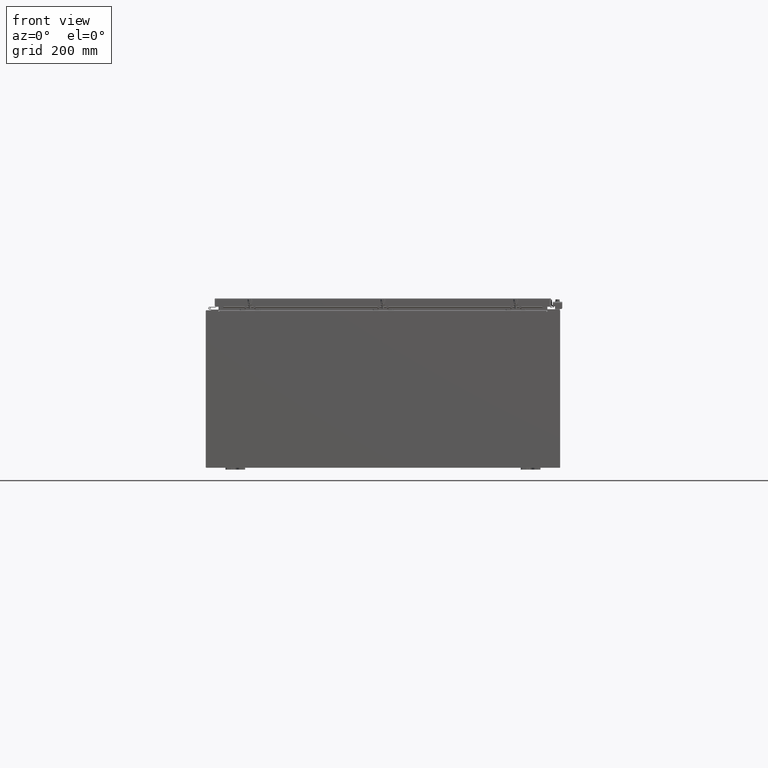
[diagram: clean part render]
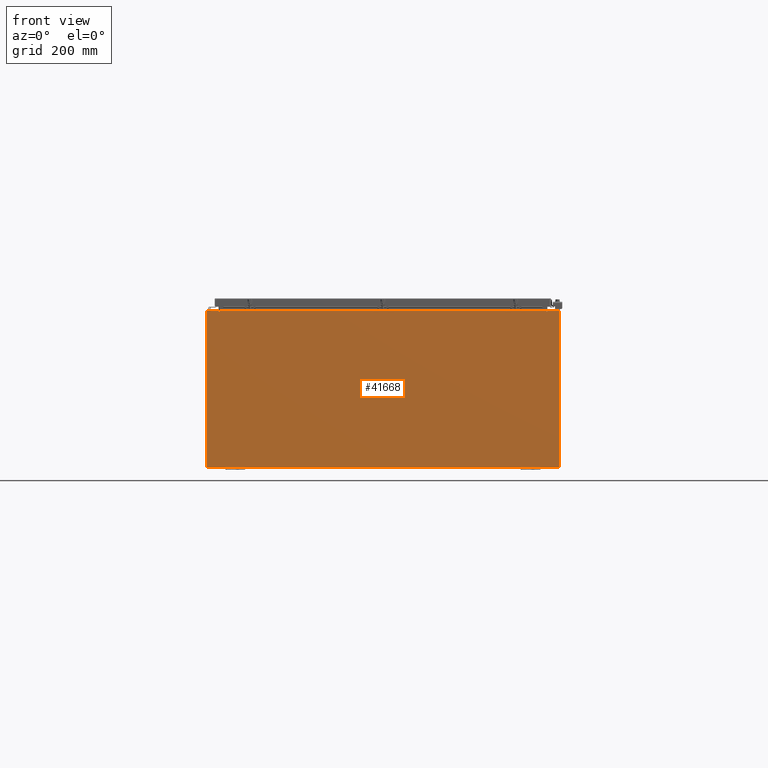
[diagram: same view with one face highlighted and labeled with its STEP entity id]
A machine part, front view. The second image highlights one B-rep face of the part: STEP entity #41668.
In plain terms, the highlighted planar face has unit normal (-0, 1, -0).
Its self-contained STEP definition (entity closure, byte-faithful):
#24 = CARTESIAN_POINT ( 'NONE',  ( 17.92530000000000000, 0.0000000000000000000, -7.925299999999997300 ) ) ;
#236 = LINE ( 'NONE', #422, #50581 ) ;
#422 = CARTESIAN_POINT ( 'NONE',  ( -16.63720000000000400, -2.356218894535426900E-015, 7.912300000000008100 ) ) ;
#897 = CARTESIAN_POINT ( 'NONE',  ( -17.92530000000000000, 0.0000000000000000000, 7.925300000000001800 ) ) ;
#941 = CARTESIAN_POINT ( 'NONE',  ( -17.92530000000000000, 0.0000000000000000000, 7.925300000000001800 ) ) ;
#1266 = EDGE_CURVE ( 'NONE', #1885, #59657, #236, .T. ) ;
#1885 = VERTEX_POINT ( 'NONE', #55952 ) ;
#1947 = DIRECTION ( 'NONE',  ( 0.0000000000000000000, -1.000000000000000000, 0.0000000000000000000 ) ) ;
#2123 = CARTESIAN_POINT ( 'NONE',  ( -16.65587500000000200, 0.0000000000000000000, 7.874950000000001900 ) ) ;
#3975 = VECTOR ( 'NONE', #57538, 39.37007874015748100 ) ;
#5174 = EDGE_CURVE ( 'NONE', #46140, #58883, #61004, .T. ) ;
#6279 = EDGE_CURVE ( 'NONE', #51325, #39852, #16871, .T. ) ;
#6495 = CARTESIAN_POINT ( 'NONE',  ( -17.92530000000000000, 0.0000000000000000000, 7.925300000000001800 ) ) ;
#7012 = CARTESIAN_POINT ( 'NONE',  ( 16.63720000000000400, 0.0000000000000000000, 7.912300000000001900 ) ) ;
#7043 = DIRECTION ( 'NONE',  ( 0.0000000000000000000, 0.0000000000000000000, -1.000000000000000000 ) ) ;
#7772 = EDGE_CURVE ( 'NONE', #36290, #59657, #12143, .T. ) ;
#8096 = DIRECTION ( 'NONE',  ( -0.0000000000000000000, 1.000000000000000000, -0.0000000000000000000 ) ) ;
#9475 = VECTOR ( 'NONE', #60514, 39.37007874015748100 ) ;
#9660 = CARTESIAN_POINT ( 'NONE',  ( 16.63720000000000400, 0.0000000000000000000, 7.874950000000001900 ) ) ;
#9875 = EDGE_CURVE ( 'NONE', #26506, #54325, #22370, .T. ) ;
#9936 = VECTOR ( 'NONE', #60362, 39.37007874015748100 ) ;
#10021 = CIRCLE ( 'NONE', #39491, 0.01867499999999949400 ) ;
#10113 = ORIENTED_EDGE ( 'NONE', *, *, #6279, .T. ) ;
#10840 = VECTOR ( 'NONE', #42315, 39.37007874015748100 ) ;
#11359 = AXIS2_PLACEMENT_3D ( 'NONE', #37160, #8096, #42063 ) ;
#12143 = LINE ( 'NONE', #25936, #47888 ) ;
#12956 = VECTOR ( 'NONE', #49744, 39.37007874015748100 ) ;
#13759 = ORIENTED_EDGE ( 'NONE', *, *, #62828, .T. ) ;
#14021 = VECTOR ( 'NONE', #35580, 39.37007874015748100 ) ;
#14038 = AXIS2_PLACEMENT_3D ( 'NONE', #31060, #1947, #35951 ) ;
#14740 = EDGE_CURVE ( 'NONE', #58883, #36290, #26262, .T. ) ;
#15547 = LINE ( 'NONE', #6495, #14021 ) ;
#15658 = ORIENTED_EDGE ( 'NONE', *, *, #48012, .F. ) ;
#16871 = LINE ( 'NONE', #22529, #54156 ) ;
#17142 = EDGE_CURVE ( 'NONE', #38350, #26506, #10021, .T. ) ;
#18363 = ORIENTED_EDGE ( 'NONE', *, *, #9875, .F. ) ;
#21587 = CARTESIAN_POINT ( 'NONE',  ( -16.67455000000000000, -0.0000000000000000000, 0.0000000000000000000 ) ) ;
#21797 = ORIENTED_EDGE ( 'NONE', *, *, #49717, .T. ) ;
#22370 = LINE ( 'NONE', #21587, #9475 ) ;
#22529 = CARTESIAN_POINT ( 'NONE',  ( -17.92530000000000000, 0.0000000000000000000, 7.925300000000001800 ) ) ;
#22827 = LINE ( 'NONE', #31211, #9936 ) ;
#24066 = ORIENTED_EDGE ( 'NONE', *, *, #59040, .T. ) ;
#24222 = ORIENTED_EDGE ( 'NONE', *, *, #14740, .F. ) ;
#24347 = FACE_OUTER_BOUND ( 'NONE', #34405, .T. ) ;
#25045 = CARTESIAN_POINT ( 'NONE',  ( 16.67455000000000000, 0.0000000000000000000, 7.874950000000001900 ) ) ;
#25727 = PLANE ( 'NONE',  #14038 ) ;
#25936 = CARTESIAN_POINT ( 'NONE',  ( 16.63720000000000400, 0.0000000000000000000, 0.0000000000000000000 ) ) ;
#26262 = CIRCLE ( 'NONE', #11359, 0.01867499999999949400 ) ;
#26506 = VERTEX_POINT ( 'NONE', #41758 ) ;
#27807 = CARTESIAN_POINT ( 'NONE',  ( 16.67454999999931800, -0.0000000000000000000, -1.447541957108381700E-012 ) ) ;
#28695 = ORIENTED_EDGE ( 'NONE', *, *, #17142, .F. ) ;
#30630 = DIRECTION ( 'NONE',  ( 0.0000000000000000000, 0.0000000000000000000, 1.000000000000000000 ) ) ;
#31060 = CARTESIAN_POINT ( 'NONE',  ( 0.0000000000000000000, 0.0000000000000000000, 0.0000000000000000000 ) ) ;
#31211 = CARTESIAN_POINT ( 'NONE',  ( 17.92530000000000000, 0.0000000000000000000, 7.925300000000000000 ) ) ;
#34254 = CARTESIAN_POINT ( 'NONE',  ( -17.92530000000000000, 0.0000000000000000000, -7.925299999999997300 ) ) ;
#34401 = VERTEX_POINT ( 'NONE', #24 ) ;
#34405 = EDGE_LOOP ( 'NONE', ( #18363, #28695, #15658, #59370, #54699, #24222, #38332, #13759, #24066, #43227, #10113, #21797 ) ) ;
#35311 = CARTESIAN_POINT ( 'NONE',  ( -17.92530000000000000, 0.0000000000000000000, -7.925299999999997300 ) ) ;
#35580 = DIRECTION ( 'NONE',  ( 1.000000000000000000, 0.0000000000000000000, -6.096072018129154100E-017 ) ) ;
#35951 = DIRECTION ( 'NONE',  ( 0.0000000000000000000, -0.0000000000000000000, -1.000000000000000000 ) ) ;
#36144 = DIRECTION ( 'NONE',  ( -0.0000000000000000000, 1.000000000000000000, -0.0000000000000000000 ) ) ;
#36290 = VERTEX_POINT ( 'NONE', #9660 ) ;
#37160 = CARTESIAN_POINT ( 'NONE',  ( 16.65587500000000200, 0.0000000000000000000, 7.874950000000001900 ) ) ;
#38332 = ORIENTED_EDGE ( 'NONE', *, *, #5174, .F. ) ;
#38350 = VERTEX_POINT ( 'NONE', #61284 ) ;
#39491 = AXIS2_PLACEMENT_3D ( 'NONE', #2123, #36144, #7043 ) ;
#39852 = VERTEX_POINT ( 'NONE', #897 ) ;
#40213 = DIRECTION ( 'NONE',  ( -1.000000000000000000, -0.0000000000000000000, -0.0000000000000000000 ) ) ;
#41150 = CARTESIAN_POINT ( 'NONE',  ( 17.92530000000000000, 0.0000000000000000000, 7.925300000000000000 ) ) ;
#41668 = ADVANCED_FACE ( 'NONE', ( #24347 ), #25727, .F. ) ;
#41758 = CARTESIAN_POINT ( 'NONE',  ( -16.67455000000000000, 0.0000000000000000000, 7.874950000000001900 ) ) ;
#42063 = DIRECTION ( 'NONE',  ( 0.0000000000000000000, 0.0000000000000000000, -1.000000000000000000 ) ) ;
#42315 = DIRECTION ( 'NONE',  ( -8.681145560800387200E-014, 0.0000000000000000000, -1.000000000000000000 ) ) ;
#42521 = CARTESIAN_POINT ( 'NONE',  ( -16.67455000000000000, 0.0000000000000000000, 7.925300000000001800 ) ) ;
#42804 = LINE ( 'NONE', #52699, #3975 ) ;
#43227 = ORIENTED_EDGE ( 'NONE', *, *, #55750, .T. ) ;
#46140 = VERTEX_POINT ( 'NONE', #56280 ) ;
#46792 = LINE ( 'NONE', #35311, #56648 ) ;
#46836 = DIRECTION ( 'NONE',  ( -0.0000000000000000000, -0.0000000000000000000, 1.000000000000000000 ) ) ;
#47888 = VECTOR ( 'NONE', #30630, 39.37007874015748100 ) ;
#48012 = EDGE_CURVE ( 'NONE', #1885, #38350, #42804, .T. ) ;
#49209 = DIRECTION ( 'NONE',  ( 1.000000000000000000, 0.0000000000000000000, 0.0000000000000000000 ) ) ;
#49717 = EDGE_CURVE ( 'NONE', #39852, #54325, #63110, .T. ) ;
#49744 = DIRECTION ( 'NONE',  ( 1.000000000000000000, 0.0000000000000000000, -6.096072018129154100E-017 ) ) ;
#50581 = VECTOR ( 'NONE', #49209, 39.37007874015748100 ) ;
#51325 = VERTEX_POINT ( 'NONE', #34254 ) ;
#52699 = CARTESIAN_POINT ( 'NONE',  ( -16.63720000000000400, -0.0000000000000000000, 0.0000000000000000000 ) ) ;
#54156 = VECTOR ( 'NONE', #46836, 39.37007874015748100 ) ;
#54325 = VERTEX_POINT ( 'NONE', #42521 ) ;
#54699 = ORIENTED_EDGE ( 'NONE', *, *, #7772, .F. ) ;
#55750 = EDGE_CURVE ( 'NONE', #34401, #51325, #46792, .T. ) ;
#55952 = CARTESIAN_POINT ( 'NONE',  ( -16.63720000000000400, -2.356218894535426900E-015, 7.912300000000008100 ) ) ;
#56280 = CARTESIAN_POINT ( 'NONE',  ( 16.67455000000000700, 0.0000000000000000000, 7.925300000000000000 ) ) ;
#56648 = VECTOR ( 'NONE', #40213, 39.37007874015748100 ) ;
#57538 = DIRECTION ( 'NONE',  ( 0.0000000000000000000, 0.0000000000000000000, -1.000000000000000000 ) ) ;
#58883 = VERTEX_POINT ( 'NONE', #25045 ) ;
#59040 = EDGE_CURVE ( 'NONE', #60105, #34401, #22827, .T. ) ;
#59370 = ORIENTED_EDGE ( 'NONE', *, *, #1266, .T. ) ;
#59657 = VERTEX_POINT ( 'NONE', #7012 ) ;
#60105 = VERTEX_POINT ( 'NONE', #41150 ) ;
#60362 = DIRECTION ( 'NONE',  ( 0.0000000000000000000, 0.0000000000000000000, -1.000000000000000000 ) ) ;
#60514 = DIRECTION ( 'NONE',  ( 0.0000000000000000000, 0.0000000000000000000, 1.000000000000000000 ) ) ;
#61004 = LINE ( 'NONE', #27807, #10840 ) ;
#61284 = CARTESIAN_POINT ( 'NONE',  ( -16.63720000000000400, -0.0000000000000000000, 7.874950000000001900 ) ) ;
#62828 = EDGE_CURVE ( 'NONE', #46140, #60105, #15547, .T. ) ;
#63110 = LINE ( 'NONE', #941, #12956 ) ;